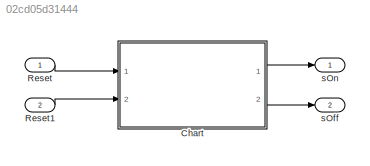
MODEL slx_02cd05d31444
KIND model
CONFIG AbsTol = auto
CONFIG FixedStep = auto
CONFIG MaxStep = auto
CONFIG MinStep = auto
CONFIG RelTol = 1e-3
CONFIG SampleTimeConstraint = Unconstrained
CONFIG Solver = VariableStepAuto
CONFIG SolverMode = Auto
CONFIG SolverName = VariableStepAuto
CONFIG StartTime = 0.0
CONFIG StopTime = 10.0
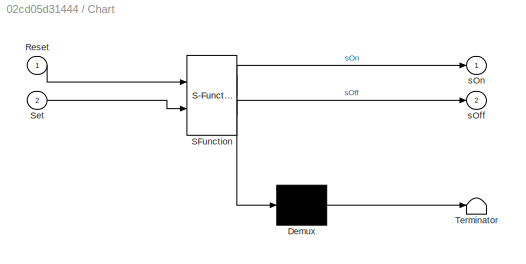
BLOCK [SubSystem] Chart
  ErrorFcn = Stateflow.Translate.translate
  PermitHierarchicalResolution = ExplicitOnly
  Ports = [2, 2]
  RequestExecContextInheritance = off
  SFBlockType = Chart
  TreatAsAtomicUnit = on
  Variant = off
BLOCK [Demux] Chart/ Demux 
  Outputs = 1
  Ports = [1, 1]
BLOCK [S-Function] Chart/ SFunction 
  EnableBusSupport = on
  FunctionName = sf_sfun
  PortCounts = [2 3]
  Ports = [2, 3]
  SFunctionDeploymentMode = off
  Tag = Stateflow S-Function Switch 3
BLOCK [Terminator] Chart/ Terminator 
BLOCK [Inport] Chart/Reset
  IconDisplay = Port number
BLOCK [Inport] Chart/Set
  IconDisplay = Port number
  Port = 2
BLOCK [Outport] Chart/sOff
  IconDisplay = Port number
  Port = 2
BLOCK [Outport] Chart/sOn
  IconDisplay = Port number
BLOCK [Inport] Reset
  IconDisplay = Port number
BLOCK [Inport] Reset1
  IconDisplay = Port number
  Port = 2
BLOCK [Outport] sOff
  IconDisplay = Port number
  Port = 2
BLOCK [Outport] sOn
  IconDisplay = Port number
LINE Chart:1 -> sOn:1
LINE Chart:2 -> sOff:1
LINE Reset1:1 -> Chart:2
LINE Reset:1 -> Chart:1
CHART Chart states=2 transitions=3
  STATE_LABEL 'OFF\nentry : sOff = true;\n sOn = false;'
  STATE_LABEL 'ON\nentry : sOff = false;\n sOn = true;'
